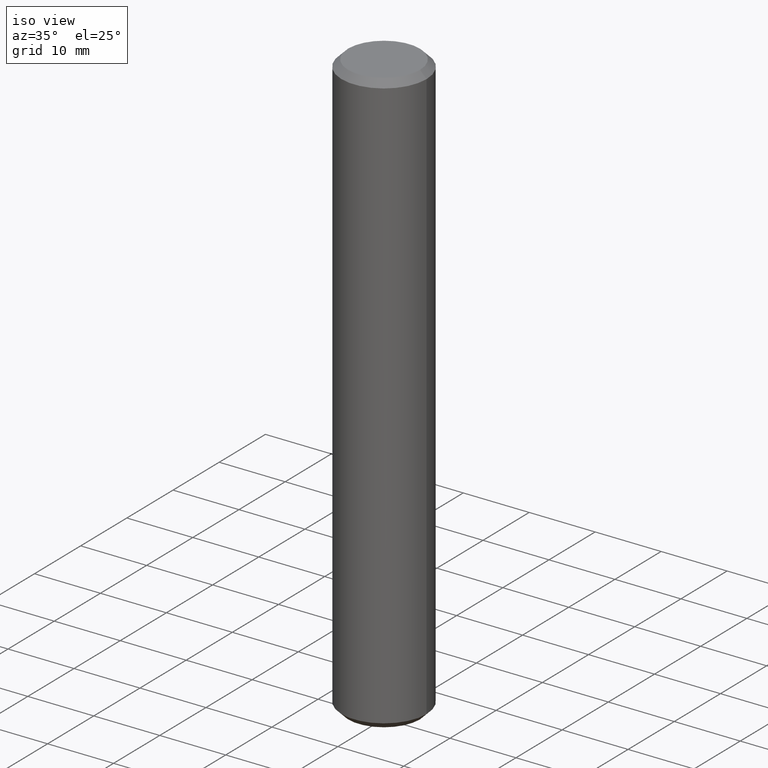
[diagram: clean part render]
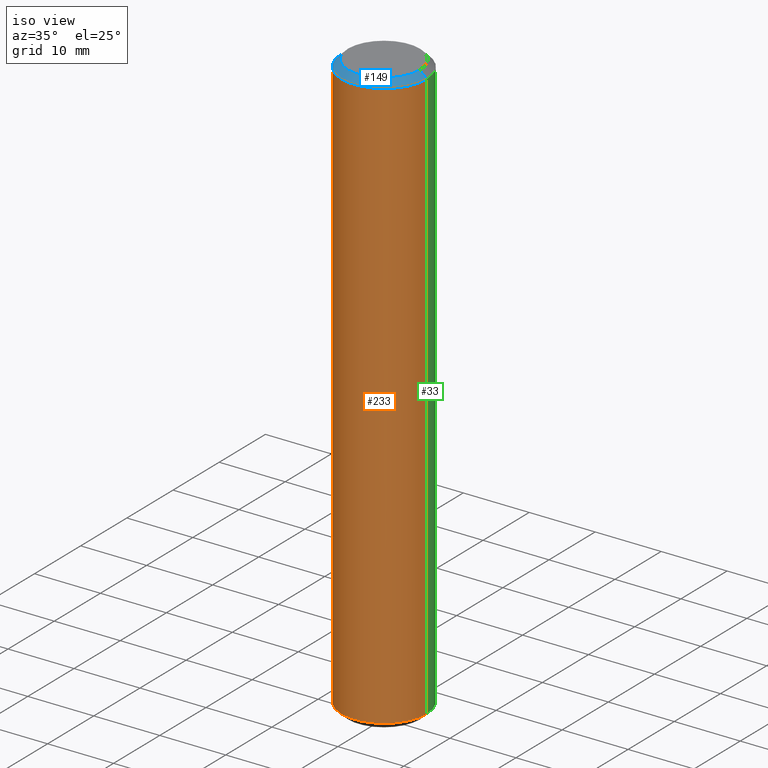
[diagram: same view with three faces highlighted in distinct colors, each labeled with its STEP entity id]
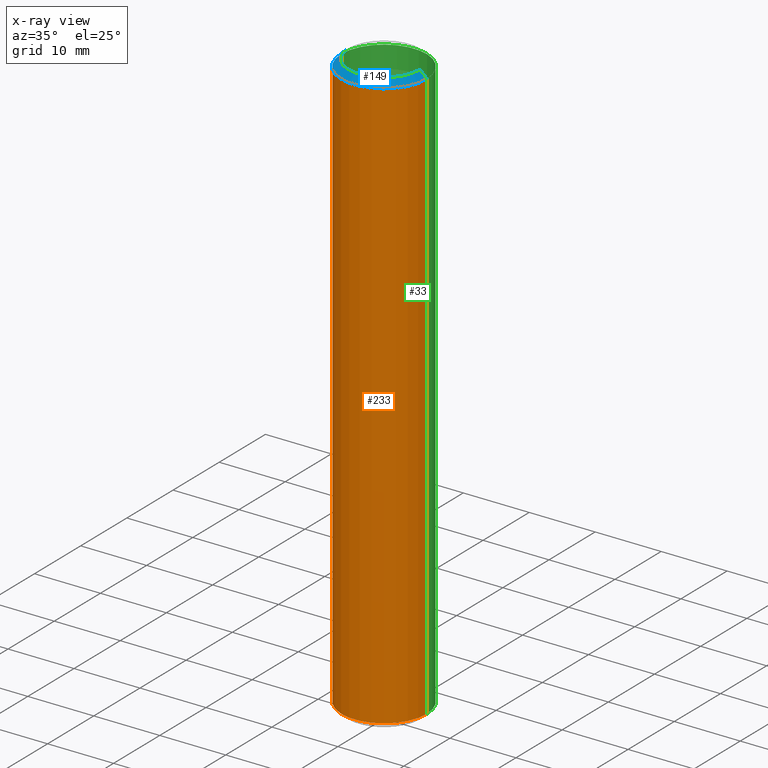
[diagram: x-ray of the same camera — body ghosted, the three highlighted faces saturated]
A machine part, iso view with three faces highlighted in distinct colors.
The next image is the same camera in x-ray (body ghosted, the three faces saturated) — at least one of them is partly hidden behind the body in this view.
Their STEP definitions:

[orange] entity #233 — the highlighted cylindrical surface (partial cylindrical patch) has radius 6.45 mm, axis along (-0, -0, -1).
#2 = AXIS2_PLACEMENT_3D ( 'NONE', #129, #216, #102 ) ;
#9 = DIRECTION ( 'NONE',  ( -0.000000000000000000, -0.000000000000000000, -1.000000000000000000 ) ) ;
#13 = CARTESIAN_POINT ( 'NONE',  ( 0.000000000000000000, 0.000000000000000000, 87.99999999999998579 ) ) ;
#15 = CARTESIAN_POINT ( 'NONE',  ( -6.450000000000001066, 0.000000000000000000, 87.99999999999998579 ) ) ;
#28 = LINE ( 'NONE', #138, #156 ) ;
#38 = ORIENTED_EDGE ( 'NONE', *, *, #164, .T. ) ;
#47 = EDGE_CURVE ( 'NONE', #122, #145, #28, .T. ) ;
#55 = EDGE_LOOP ( 'NONE', ( #213, #147, #78, #38 ) ) ;
#66 = DIRECTION ( 'NONE',  ( 0.000000000000000000, 0.000000000000000000, -1.000000000000000000 ) ) ;
#78 = ORIENTED_EDGE ( 'NONE', *, *, #194, .T. ) ;
#84 = DIRECTION ( 'NONE',  ( -0.000000000000000000, -0.000000000000000000, 1.000000000000000000 ) ) ;
#86 = CARTESIAN_POINT ( 'NONE',  ( -6.450000000000001066, 0.000000000000000000, 89.00000000000000000 ) ) ;
#91 = CIRCLE ( 'NONE', #254, 6.450000000000001066 ) ;
#101 = DIRECTION ( 'NONE',  ( 1.000000000000000000, 0.000000000000000000, 0.000000000000000000 ) ) ;
#102 = DIRECTION ( 'NONE',  ( -1.000000000000000000, 0.000000000000000000, 0.000000000000000000 ) ) ;
#122 = VERTEX_POINT ( 'NONE', #143 ) ;
#127 = CYLINDRICAL_SURFACE ( 'NONE', #2, 6.450000000000001066 ) ;
#129 = CARTESIAN_POINT ( 'NONE',  ( 0.000000000000000000, 0.000000000000000000, 89.00000000000000000 ) ) ;
#138 = CARTESIAN_POINT ( 'NONE',  ( 6.450000000000001066, 7.898971854500429678E-16, 89.00000000000000000 ) ) ;
#143 = CARTESIAN_POINT ( 'NONE',  ( 6.450000000000001066, 7.898971854500429678E-16, 87.99999999999998579 ) ) ;
#145 = VERTEX_POINT ( 'NONE', #239 ) ;
#146 = VECTOR ( 'NONE', #212, 1000.000000000000000 ) ;
#147 = ORIENTED_EDGE ( 'NONE', *, *, #196, .T. ) ;
#150 = FACE_OUTER_BOUND ( 'NONE', #55, .T. ) ;
#154 = AXIS2_PLACEMENT_3D ( 'NONE', #177, #84, #171 ) ;
#156 = VECTOR ( 'NONE', #9, 1000.000000000000000 ) ;
#164 = EDGE_CURVE ( 'NONE', #205, #145, #181, .T. ) ;
#171 = DIRECTION ( 'NONE',  ( 1.000000000000000000, 0.000000000000000000, 0.000000000000000000 ) ) ;
#177 = CARTESIAN_POINT ( 'NONE',  ( 0.000000000000000000, 0.000000000000000000, 0.9999999999999870104 ) ) ;
#181 = CIRCLE ( 'NONE', #154, 6.450000000000001066 ) ;
#194 = EDGE_CURVE ( 'NONE', #227, #205, #218, .T. ) ;
#196 = EDGE_CURVE ( 'NONE', #122, #227, #91, .T. ) ;
#201 = CARTESIAN_POINT ( 'NONE',  ( -6.450000000000001066, 0.000000000000000000, 0.9999999999999870104 ) ) ;
#205 = VERTEX_POINT ( 'NONE', #201 ) ;
#212 = DIRECTION ( 'NONE',  ( -0.000000000000000000, -0.000000000000000000, -1.000000000000000000 ) ) ;
#213 = ORIENTED_EDGE ( 'NONE', *, *, #47, .F. ) ;
#216 = DIRECTION ( 'NONE',  ( -0.000000000000000000, -0.000000000000000000, -1.000000000000000000 ) ) ;
#218 = LINE ( 'NONE', #86, #146 ) ;
#227 = VERTEX_POINT ( 'NONE', #15 ) ;
#233 = ADVANCED_FACE ( 'NONE', ( #150 ), #127, .T. ) ;
#239 = CARTESIAN_POINT ( 'NONE',  ( 6.450000000000001066, 7.898971854500429678E-16, 0.9999999999999870104 ) ) ;
#254 = AXIS2_PLACEMENT_3D ( 'NONE', #13, #66, #101 ) ;

[blue] entity #149 — the highlighted conical surface has half-angle 45 deg.
#4 = EDGE_CURVE ( 'NONE', #65, #210, #22, .T. ) ;
#12 = LINE ( 'NONE', #263, #245 ) ;
#13 = CARTESIAN_POINT ( 'NONE',  ( 0.000000000000000000, 0.000000000000000000, 87.99999999999998579 ) ) ;
#15 = CARTESIAN_POINT ( 'NONE',  ( -6.450000000000001066, 0.000000000000000000, 87.99999999999998579 ) ) ;
#22 = CIRCLE ( 'NONE', #106, 5.449999999999996625 ) ;
#24 = EDGE_CURVE ( 'NONE', #65, #227, #31, .T. ) ;
#27 = DIRECTION ( 'NONE',  ( 0.000000000000000000, 0.000000000000000000, 1.000000000000000000 ) ) ;
#29 = DIRECTION ( 'NONE',  ( 1.000000000000000000, 0.000000000000000000, 0.000000000000000000 ) ) ;
#31 = LINE ( 'NONE', #119, #59 ) ;
#36 = CARTESIAN_POINT ( 'NONE',  ( 0.000000000000000000, 0.000000000000000000, 89.00000000000000000 ) ) ;
#37 = EDGE_CURVE ( 'NONE', #210, #122, #12, .T. ) ;
#59 = VECTOR ( 'NONE', #187, 1000.000000000000000 ) ;
#65 = VERTEX_POINT ( 'NONE', #95 ) ;
#66 = DIRECTION ( 'NONE',  ( 0.000000000000000000, 0.000000000000000000, -1.000000000000000000 ) ) ;
#77 = ORIENTED_EDGE ( 'NONE', *, *, #37, .F. ) ;
#87 = FACE_OUTER_BOUND ( 'NONE', #253, .T. ) ;
#91 = CIRCLE ( 'NONE', #254, 6.450000000000001066 ) ;
#95 = CARTESIAN_POINT ( 'NONE',  ( -5.449999999999996625, 0.000000000000000000, 89.00000000000000000 ) ) ;
#101 = DIRECTION ( 'NONE',  ( 1.000000000000000000, 0.000000000000000000, 0.000000000000000000 ) ) ;
#104 = ORIENTED_EDGE ( 'NONE', *, *, #4, .F. ) ;
#106 = AXIS2_PLACEMENT_3D ( 'NONE', #232, #27, #29 ) ;
#119 = CARTESIAN_POINT ( 'NONE',  ( -5.449999999999996625, 0.000000000000000000, 89.00000000000000000 ) ) ;
#122 = VERTEX_POINT ( 'NONE', #143 ) ;
#135 = CONICAL_SURFACE ( 'NONE', #200, 5.449999999999996625, 0.7853981633974431720 ) ;
#143 = CARTESIAN_POINT ( 'NONE',  ( 6.450000000000001066, 7.898971854500429678E-16, 87.99999999999998579 ) ) ;
#149 = ADVANCED_FACE ( 'NONE', ( #87 ), #135, .T. ) ;
#152 = DIRECTION ( 'NONE',  ( -1.000000000000000000, 0.000000000000000000, 0.000000000000000000 ) ) ;
#187 = DIRECTION ( 'NONE',  ( -0.7071067811865439090, 0.000000000000000000, -0.7071067811865512365 ) ) ;
#196 = EDGE_CURVE ( 'NONE', #122, #227, #91, .T. ) ;
#200 = AXIS2_PLACEMENT_3D ( 'NONE', #36, #258, #152 ) ;
#208 = ORIENTED_EDGE ( 'NONE', *, *, #196, .F. ) ;
#210 = VERTEX_POINT ( 'NONE', #214 ) ;
#214 = CARTESIAN_POINT ( 'NONE',  ( 5.449999999999996625, 7.286648454926749993E-16, 89.00000000000000000 ) ) ;
#227 = VERTEX_POINT ( 'NONE', #15 ) ;
#230 = DIRECTION ( 'NONE',  ( 0.7071067811865439090, 8.659560562354889717E-17, -0.7071067811865512365 ) ) ;
#232 = CARTESIAN_POINT ( 'NONE',  ( 0.000000000000000000, 0.000000000000000000, 89.00000000000000000 ) ) ;
#235 = ORIENTED_EDGE ( 'NONE', *, *, #24, .T. ) ;
#245 = VECTOR ( 'NONE', #230, 1000.000000000000000 ) ;
#253 = EDGE_LOOP ( 'NONE', ( #77, #104, #235, #208 ) ) ;
#254 = AXIS2_PLACEMENT_3D ( 'NONE', #13, #66, #101 ) ;
#258 = DIRECTION ( 'NONE',  ( 0.000000000000000000, 0.000000000000000000, -1.000000000000000000 ) ) ;
#263 = CARTESIAN_POINT ( 'NONE',  ( 5.449999999999996625, 6.674325055353071294E-16, 89.00000000000000000 ) ) ;

[green] entity #33 — the highlighted cylindrical surface (partial cylindrical patch) has radius 6.45 mm, axis along (-0, -0, -1).
#5 = DIRECTION ( 'NONE',  ( -1.000000000000000000, 0.000000000000000000, 0.000000000000000000 ) ) ;
#9 = DIRECTION ( 'NONE',  ( -0.000000000000000000, -0.000000000000000000, -1.000000000000000000 ) ) ;
#15 = CARTESIAN_POINT ( 'NONE',  ( -6.450000000000001066, 0.000000000000000000, 87.99999999999998579 ) ) ;
#28 = LINE ( 'NONE', #138, #156 ) ;
#30 = AXIS2_PLACEMENT_3D ( 'NONE', #56, #92, #184 ) ;
#33 = ADVANCED_FACE ( 'NONE', ( #58 ), #79, .T. ) ;
#47 = EDGE_CURVE ( 'NONE', #122, #145, #28, .T. ) ;
#54 = EDGE_LOOP ( 'NONE', ( #130, #257, #142, #168 ) ) ;
#56 = CARTESIAN_POINT ( 'NONE',  ( 0.000000000000000000, 0.000000000000000000, 0.9999999999999870104 ) ) ;
#58 = FACE_OUTER_BOUND ( 'NONE', #54, .T. ) ;
#70 = EDGE_CURVE ( 'NONE', #145, #205, #224, .T. ) ;
#79 = CYLINDRICAL_SURFACE ( 'NONE', #96, 6.450000000000001066 ) ;
#86 = CARTESIAN_POINT ( 'NONE',  ( -6.450000000000001066, 0.000000000000000000, 89.00000000000000000 ) ) ;
#92 = DIRECTION ( 'NONE',  ( -0.000000000000000000, -0.000000000000000000, 1.000000000000000000 ) ) ;
#96 = AXIS2_PLACEMENT_3D ( 'NONE', #141, #124, #5 ) ;
#115 = EDGE_CURVE ( 'NONE', #227, #122, #158, .T. ) ;
#122 = VERTEX_POINT ( 'NONE', #143 ) ;
#124 = DIRECTION ( 'NONE',  ( -0.000000000000000000, -0.000000000000000000, -1.000000000000000000 ) ) ;
#130 = ORIENTED_EDGE ( 'NONE', *, *, #115, .T. ) ;
#138 = CARTESIAN_POINT ( 'NONE',  ( 6.450000000000001066, 7.898971854500429678E-16, 89.00000000000000000 ) ) ;
#141 = CARTESIAN_POINT ( 'NONE',  ( 0.000000000000000000, 0.000000000000000000, 89.00000000000000000 ) ) ;
#142 = ORIENTED_EDGE ( 'NONE', *, *, #70, .T. ) ;
#143 = CARTESIAN_POINT ( 'NONE',  ( 6.450000000000001066, 7.898971854500429678E-16, 87.99999999999998579 ) ) ;
#145 = VERTEX_POINT ( 'NONE', #239 ) ;
#146 = VECTOR ( 'NONE', #212, 1000.000000000000000 ) ;
#156 = VECTOR ( 'NONE', #9, 1000.000000000000000 ) ;
#158 = CIRCLE ( 'NONE', #228, 6.450000000000001066 ) ;
#166 = CARTESIAN_POINT ( 'NONE',  ( 0.000000000000000000, 0.000000000000000000, 87.99999999999998579 ) ) ;
#167 = DIRECTION ( 'NONE',  ( 1.000000000000000000, 0.000000000000000000, 0.000000000000000000 ) ) ;
#168 = ORIENTED_EDGE ( 'NONE', *, *, #194, .F. ) ;
#184 = DIRECTION ( 'NONE',  ( 1.000000000000000000, 0.000000000000000000, 0.000000000000000000 ) ) ;
#194 = EDGE_CURVE ( 'NONE', #227, #205, #218, .T. ) ;
#201 = CARTESIAN_POINT ( 'NONE',  ( -6.450000000000001066, 0.000000000000000000, 0.9999999999999870104 ) ) ;
#205 = VERTEX_POINT ( 'NONE', #201 ) ;
#212 = DIRECTION ( 'NONE',  ( -0.000000000000000000, -0.000000000000000000, -1.000000000000000000 ) ) ;
#218 = LINE ( 'NONE', #86, #146 ) ;
#224 = CIRCLE ( 'NONE', #30, 6.450000000000001066 ) ;
#227 = VERTEX_POINT ( 'NONE', #15 ) ;
#228 = AXIS2_PLACEMENT_3D ( 'NONE', #166, #251, #167 ) ;
#239 = CARTESIAN_POINT ( 'NONE',  ( 6.450000000000001066, 7.898971854500429678E-16, 0.9999999999999870104 ) ) ;
#251 = DIRECTION ( 'NONE',  ( 0.000000000000000000, 0.000000000000000000, -1.000000000000000000 ) ) ;
#257 = ORIENTED_EDGE ( 'NONE', *, *, #47, .T. ) ;